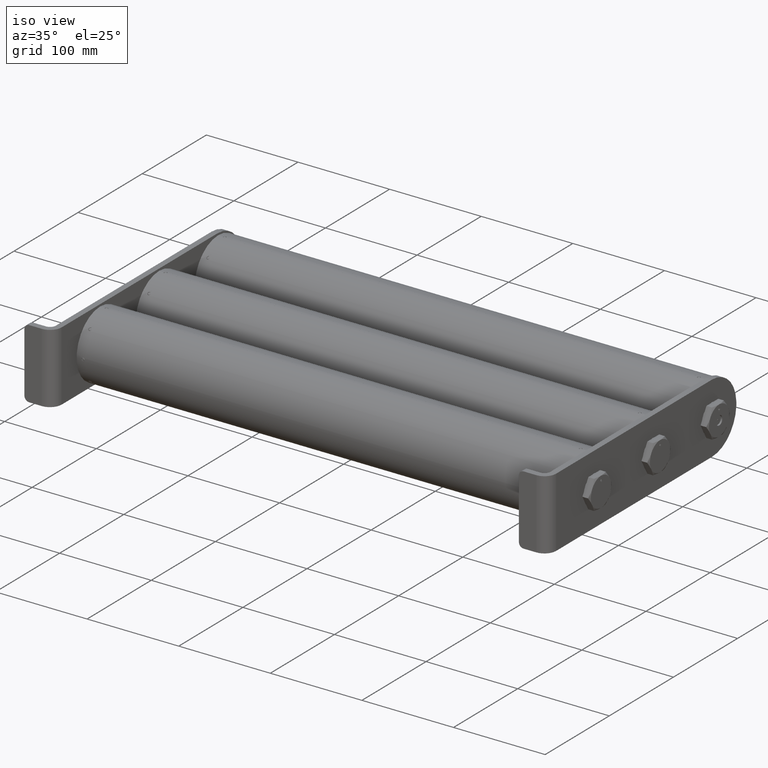
[diagram: clean part render]
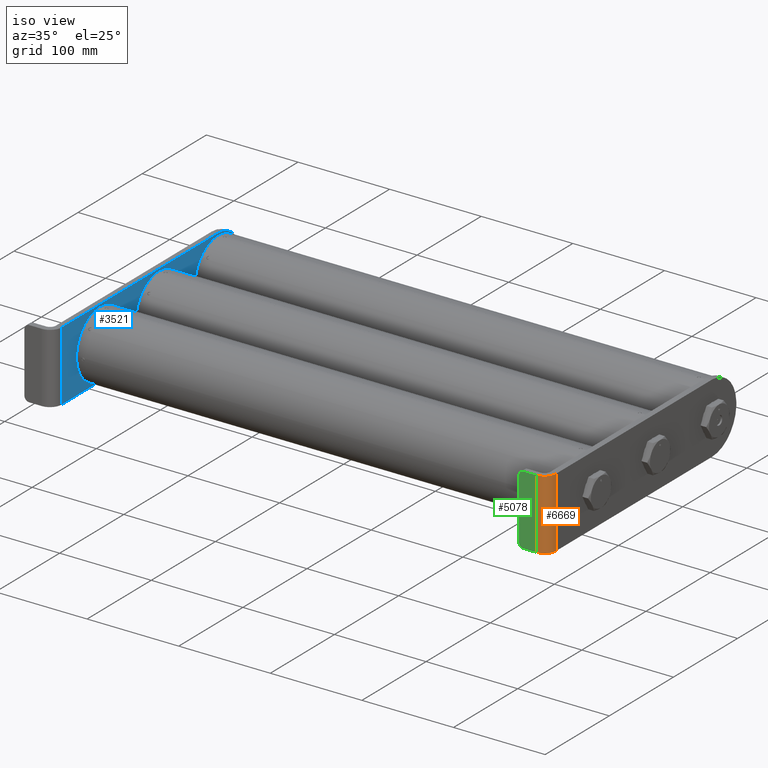
[diagram: same view with three faces highlighted in distinct colors, each labeled with its STEP entity id]
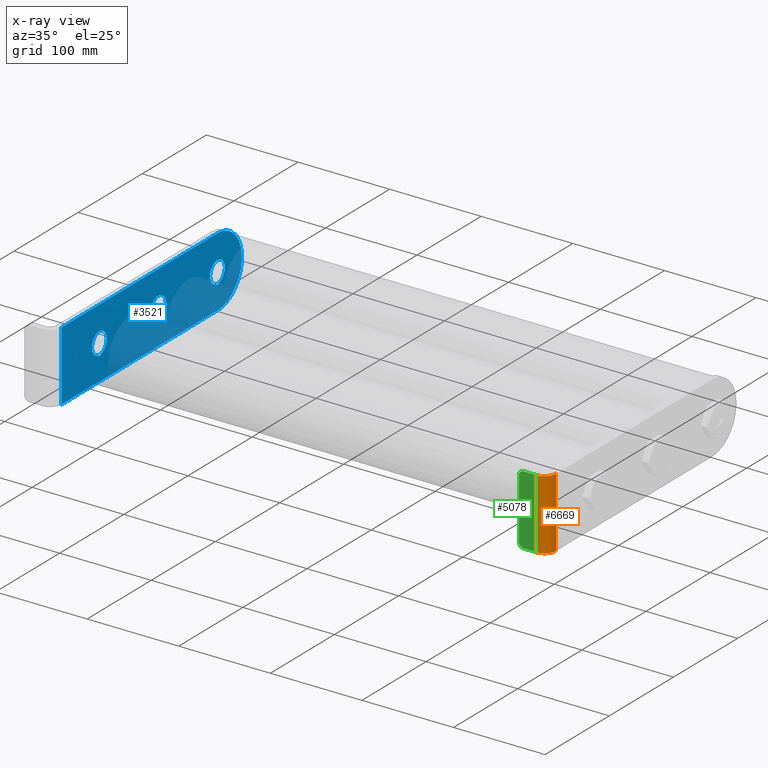
[diagram: x-ray of the same camera — body ghosted, the three highlighted faces saturated]
A machine part, iso view with three faces highlighted in distinct colors.
The next image is the same camera in x-ray (body ghosted, the three faces saturated) — at least one of them is partly hidden behind the body in this view.
Their STEP definitions:

[orange] entity #6669 — the highlighted cylindrical surface (edge-blend (fillet) strip) has radius 12.7 mm, axis along (0, 0, -1).
#107 = CYLINDRICAL_SURFACE ( 'NONE', #20725, 0.5000000000000006661 ) ;
#752 = CARTESIAN_POINT ( 'NONE',  ( -6.030000000000001137, 0.2499999999999993616, 1.500000000000000222 ) ) ;
#1073 = VECTOR ( 'NONE', #12927, 39.37007874015748143 ) ;
#1610 = CARTESIAN_POINT ( 'NONE',  ( -5.530000000000000249, 0.2499999999999993616, -1.500000000000000222 ) ) ;
#2713 = DIRECTION ( 'NONE',  ( -0.000000000000000000, -0.000000000000000000, -1.000000000000000000 ) ) ;
#3266 = VERTEX_POINT ( 'NONE', #3290 ) ;
#3290 = CARTESIAN_POINT ( 'NONE',  ( -5.530000000000000249, -0.2500000000000013323, 1.500000000000000222 ) ) ;
#3299 = DIRECTION ( 'NONE',  ( -1.000000000000000000, 0.000000000000000000, 0.000000000000000000 ) ) ;
#3683 = VERTEX_POINT ( 'NONE', #13980 ) ;
#4014 = CARTESIAN_POINT ( 'NONE',  ( -5.530000000000000249, 0.2499999999999993616, 1.500000000000000222 ) ) ;
#5088 = DIRECTION ( 'NONE',  ( -0.000000000000000000, -0.000000000000000000, -1.000000000000000000 ) ) ;
#5571 = EDGE_CURVE ( 'NONE', #20131, #3683, #7667, .T. ) ;
#5859 = LINE ( 'NONE', #12333, #6403 ) ;
#5960 = CIRCLE ( 'NONE', #13776, 0.5000000000000006661 ) ;
#5967 = EDGE_CURVE ( 'NONE', #9430, #20131, #11743, .T. ) ;
#6403 = VECTOR ( 'NONE', #2713, 39.37007874015748143 ) ;
#6439 = CARTESIAN_POINT ( 'NONE',  ( -6.030000000000001137, 0.2499999999999993616, 1.500000000000000222 ) ) ;
#6669 = ADVANCED_FACE ( 'NONE', ( #10239 ), #107, .T. ) ;
#7667 = CIRCLE ( 'NONE', #12744, 0.5000000000000006661 ) ;
#8250 = CARTESIAN_POINT ( 'NONE',  ( -5.530000000000000249, 0.2499999999999993616, 1.500000000000000222 ) ) ;
#9430 = VERTEX_POINT ( 'NONE', #752 ) ;
#9834 = DIRECTION ( 'NONE',  ( -1.000000000000000000, 0.000000000000000000, 0.000000000000000000 ) ) ;
#10239 = FACE_OUTER_BOUND ( 'NONE', #14266, .T. ) ;
#10357 = ORIENTED_EDGE ( 'NONE', *, *, #14975, .F. ) ;
#10439 = DIRECTION ( 'NONE',  ( 0.000000000000000000, 0.000000000000000000, 1.000000000000000000 ) ) ;
#10464 = ORIENTED_EDGE ( 'NONE', *, *, #5571, .T. ) ;
#11743 = LINE ( 'NONE', #6439, #1073 ) ;
#12333 = CARTESIAN_POINT ( 'NONE',  ( -5.530000000000000249, -0.2500000000000013323, 1.500000000000000222 ) ) ;
#12744 = AXIS2_PLACEMENT_3D ( 'NONE', #1610, #17641, #3299 ) ;
#12927 = DIRECTION ( 'NONE',  ( -0.000000000000000000, -0.000000000000000000, -1.000000000000000000 ) ) ;
#13549 = CARTESIAN_POINT ( 'NONE',  ( -6.030000000000001137, 0.2499999999999993616, -1.500000000000000222 ) ) ;
#13776 = AXIS2_PLACEMENT_3D ( 'NONE', #4014, #10439, #18361 ) ;
#13980 = CARTESIAN_POINT ( 'NONE',  ( -5.530000000000000249, -0.2500000000000013323, -1.500000000000000222 ) ) ;
#14266 = EDGE_LOOP ( 'NONE', ( #10464, #10357, #16253, #15462 ) ) ;
#14975 = EDGE_CURVE ( 'NONE', #3266, #3683, #5859, .T. ) ;
#15462 = ORIENTED_EDGE ( 'NONE', *, *, #5967, .T. ) ;
#16253 = ORIENTED_EDGE ( 'NONE', *, *, #17688, .F. ) ;
#17641 = DIRECTION ( 'NONE',  ( 0.000000000000000000, 0.000000000000000000, 1.000000000000000000 ) ) ;
#17688 = EDGE_CURVE ( 'NONE', #9430, #3266, #5960, .T. ) ;
#18361 = DIRECTION ( 'NONE',  ( -1.000000000000000000, 0.000000000000000000, 0.000000000000000000 ) ) ;
#20131 = VERTEX_POINT ( 'NONE', #13549 ) ;
#20725 = AXIS2_PLACEMENT_3D ( 'NONE', #8250, #5088, #9834 ) ;

[blue] entity #3521 — the highlighted planar face has unit normal (-1, -0, 0).
#145 = EDGE_CURVE ( 'NONE', #5104, #5358, #8671, .T. ) ;
#217 = CARTESIAN_POINT ( 'NONE',  ( 0.4080000000000322258, -0.2500000000000006106, -0.4380000000002428062 ) ) ;
#428 = EDGE_CURVE ( 'NONE', #8827, #12040, #13453, .T. ) ;
#451 = LINE ( 'NONE', #18288, #16926 ) ;
#463 = VERTEX_POINT ( 'NONE', #11851 ) ;
#490 = EDGE_LOOP ( 'NONE', ( #17114, #6637, #16041, #11797 ) ) ;
#653 = DIRECTION ( 'NONE',  ( -6.244565049226323508E-17, 1.000000000000000000, 0.000000000000000000 ) ) ;
#926 = CARTESIAN_POINT ( 'NONE',  ( -3.279340087111078716, -0.2500000000000009992, -0.4486899971461180137 ) ) ;
#1086 = CARTESIAN_POINT ( 'NONE',  ( 4.033000000000001251, -0.2500000000000014433, 0.000000000000000000 ) ) ;
#1115 = CARTESIAN_POINT ( 'NONE',  ( 4.486000000000000654, -0.2500000000000013878, 5.547650000137510070E-17 ) ) ;
#1313 = CIRCLE ( 'NONE', #11446, 0.06324999999999993128 ) ;
#1355 = EDGE_CURVE ( 'NONE', #463, #11784, #19611, .T. ) ;
#1413 = LINE ( 'NONE', #1506, #3235 ) ;
#1506 = CARTESIAN_POINT ( 'NONE',  ( 5.530000000000000249, -0.2500000000000000000, 1.500000000000000222 ) ) ;
#1644 = CARTESIAN_POINT ( 'NONE',  ( 4.095340087111150496, -0.2500000000000014433, -0.4486899971461076886 ) ) ;
#1662 = CIRCLE ( 'NONE', #1996, 0.4529999999999997917 ) ;
#1706 = CARTESIAN_POINT ( 'NONE',  ( 4.033000000000001251, -0.2500000000000014433, 0.000000000000000000 ) ) ;
#1716 = EDGE_CURVE ( 'NONE', #5358, #6421, #1662, .T. ) ;
#1754 = CARTESIAN_POINT ( 'NONE',  ( 0.4080000000000006954, -0.2500000000000016098, 0.000000000000000000 ) ) ;
#1766 = EDGE_CURVE ( 'NONE', #16287, #12601, #16499, .T. ) ;
#1996 = AXIS2_PLACEMENT_3D ( 'NONE', #3162, #3361, #3068 ) ;
#2000 = EDGE_LOOP ( 'NONE', ( #12042, #5800, #9163, #20291 ) ) ;
#2113 = CIRCLE ( 'NONE', #8178, 0.4530000000000003468 ) ;
#2241 = AXIS2_PLACEMENT_3D ( 'NONE', #1754, #8188, #11600 ) ;
#2705 = CARTESIAN_POINT ( 'NONE',  ( -3.669999999999999929, -0.2500000000000018874, 0.000000000000000000 ) ) ;
#2776 = AXIS2_PLACEMENT_3D ( 'NONE', #217, #16738, #3505 ) ;
#2805 = DIRECTION ( 'NONE',  ( -1.000000000000000000, 0.000000000000000000, 0.000000000000000000 ) ) ;
#3068 = DIRECTION ( 'NONE',  ( -1.000000000000000000, -7.538211903047087144E-17, 0.000000000000000000 ) ) ;
#3077 = DIRECTION ( 'NONE',  ( -1.000000000000000000, -1.204137338979501345E-16, 0.000000000000000000 ) ) ;
#3109 = CIRCLE ( 'NONE', #2776, 0.06324999999999993128 ) ;
#3162 = CARTESIAN_POINT ( 'NONE',  ( 4.033000000000001251, -0.2500000000000014433, 0.000000000000000000 ) ) ;
#3235 = VECTOR ( 'NONE', #8042, 39.37007874015748143 ) ;
#3361 = DIRECTION ( 'NONE',  ( -6.244565049226323508E-17, 1.000000000000000000, 0.000000000000000000 ) ) ;
#3505 = DIRECTION ( 'NONE',  ( -1.000000000000000000, 0.000000000000000000, 0.000000000000000000 ) ) ;
#3521 = ADVANCED_FACE ( 'NONE', ( #19319, #4757, #17717, #11107 ), #10788, .F. ) ;
#3601 = EDGE_CURVE ( 'NONE', #13589, #16770, #17049, .T. ) ;
#3952 = AXIS2_PLACEMENT_3D ( 'NONE', #19842, #14744, #5176 ) ;
#4205 = DIRECTION ( 'NONE',  ( -1.000000000000000000, -7.538211903047078516E-17, 0.000000000000000000 ) ) ;
#4596 = CARTESIAN_POINT ( 'NONE',  ( -0.04499999999999972772, -0.2500000000000016653, 0.000000000000000000 ) ) ;
#4757 = FACE_OUTER_BOUND ( 'NONE', #9872, .T. ) ;
#4782 = ORIENTED_EDGE ( 'NONE', *, *, #17067, .F. ) ;
#5010 = CARTESIAN_POINT ( 'NONE',  ( 4.033000000000001251, -0.2500000000000001665, -1.500000000000000222 ) ) ;
#5104 = VERTEX_POINT ( 'NONE', #5528 ) ;
#5176 = DIRECTION ( 'NONE',  ( -1.000000000000000000, -7.538211903047087144E-17, 0.000000000000000000 ) ) ;
#5295 = CIRCLE ( 'NONE', #8003, 1.499999999999999334 ) ;
#5358 = VERTEX_POINT ( 'NONE', #18399 ) ;
#5477 = AXIS2_PLACEMENT_3D ( 'NONE', #6028, #6435, #18902 ) ;
#5528 = CARTESIAN_POINT ( 'NONE',  ( 3.970659912888917287, -0.2500000000000001110, -0.4486899971461167924 ) ) ;
#5607 = EDGE_CURVE ( 'NONE', #6421, #17214, #13096, .T. ) ;
#5800 = ORIENTED_EDGE ( 'NONE', *, *, #17153, .T. ) ;
#5983 = DIRECTION ( 'NONE',  ( 1.000000000000000000, 1.204137338979501099E-16, -0.000000000000000000 ) ) ;
#6028 = CARTESIAN_POINT ( 'NONE',  ( 0.4080000000000006954, -0.2500000000000016098, 0.000000000000000000 ) ) ;
#6421 = VERTEX_POINT ( 'NONE', #1115 ) ;
#6435 = DIRECTION ( 'NONE',  ( -6.244565049226323508E-17, 1.000000000000000000, 0.000000000000000000 ) ) ;
#6494 = CARTESIAN_POINT ( 'NONE',  ( 5.530000000000000249, -0.2500000000000013323, -0.09482088377568229087 ) ) ;
#6523 = CARTESIAN_POINT ( 'NONE',  ( 0.4703400871111476644, -0.2500000000000016098, -0.4486899971461085768 ) ) ;
#6637 = ORIENTED_EDGE ( 'NONE', *, *, #1716, .T. ) ;
#6736 = VECTOR ( 'NONE', #8427, 39.37007874015748143 ) ;
#6750 = EDGE_CURVE ( 'NONE', #16770, #463, #3109, .T. ) ;
#6881 = CARTESIAN_POINT ( 'NONE',  ( 4.033000000000001251, -0.2500000000000014433, 0.000000000000000000 ) ) ;
#6887 = DIRECTION ( 'NONE',  ( -0.000000000000000000, -0.000000000000000000, -1.000000000000000000 ) ) ;
#6995 = CARTESIAN_POINT ( 'NONE',  ( 4.033000000000001251, -0.2500000000000014433, 1.499999999999999778 ) ) ;
#7043 = ORIENTED_EDGE ( 'NONE', *, *, #15238, .T. ) ;
#7171 = VERTEX_POINT ( 'NONE', #12687 ) ;
#7276 = CARTESIAN_POINT ( 'NONE',  ( 0.4080000000000006954, -0.2500000000000016098, 0.000000000000000000 ) ) ;
#7450 = ORIENTED_EDGE ( 'NONE', *, *, #19610, .T. ) ;
#7569 = EDGE_CURVE ( 'NONE', #19679, #12758, #2113, .T. ) ;
#7576 = AXIS2_PLACEMENT_3D ( 'NONE', #6881, #11877, #18282 ) ;
#7717 = AXIS2_PLACEMENT_3D ( 'NONE', #7276, #10325, #12174 ) ;
#7788 = ORIENTED_EDGE ( 'NONE', *, *, #1766, .T. ) ;
#8003 = AXIS2_PLACEMENT_3D ( 'NONE', #1706, #8349, #14843 ) ;
#8042 = DIRECTION ( 'NONE',  ( -0.000000000000000000, -0.000000000000000000, -1.000000000000000000 ) ) ;
#8178 = AXIS2_PLACEMENT_3D ( 'NONE', #10412, #15014, #16599 ) ;
#8188 = DIRECTION ( 'NONE',  ( -6.244565049226323508E-17, 1.000000000000000000, 0.000000000000000000 ) ) ;
#8216 = EDGE_CURVE ( 'NONE', #12601, #12651, #17075, .T. ) ;
#8263 = AXIS2_PLACEMENT_3D ( 'NONE', #19788, #18104, #18008 ) ;
#8349 = DIRECTION ( 'NONE',  ( 6.244565049226323508E-17, -1.000000000000000000, 0.000000000000000000 ) ) ;
#8427 = DIRECTION ( 'NONE',  ( 1.000000000000000000, 1.204137338979501099E-16, -0.000000000000000000 ) ) ;
#8671 = CIRCLE ( 'NONE', #16154, 0.4529999999999997917 ) ;
#8703 = EDGE_CURVE ( 'NONE', #12758, #8827, #12345, .T. ) ;
#8801 = ORIENTED_EDGE ( 'NONE', *, *, #8216, .T. ) ;
#8827 = VERTEX_POINT ( 'NONE', #10188 ) ;
#9163 = ORIENTED_EDGE ( 'NONE', *, *, #3601, .T. ) ;
#9273 = ORIENTED_EDGE ( 'NONE', *, *, #428, .T. ) ;
#9465 = CARTESIAN_POINT ( 'NONE',  ( 0.8610000000000009868, -0.2500000000000016098, 5.547650000137516850E-17 ) ) ;
#9659 = DIRECTION ( 'NONE',  ( -1.000000000000000000, 0.000000000000000000, 0.000000000000000000 ) ) ;
#9872 = EDGE_LOOP ( 'NONE', ( #7788, #8801, #20055, #7450, #4782, #7043 ) ) ;
#10090 = CARTESIAN_POINT ( 'NONE',  ( -3.216999999999968107, -0.2500000000000010547, -0.4380000000002303717 ) ) ;
#10188 = CARTESIAN_POINT ( 'NONE',  ( -2.763999999999999346, -0.2500000000000018319, 5.547650000137516850E-17 ) ) ;
#10325 = DIRECTION ( 'NONE',  ( -6.244565049226323508E-17, 1.000000000000000000, 0.000000000000000000 ) ) ;
#10412 = CARTESIAN_POINT ( 'NONE',  ( -3.216999999999999638, -0.2500000000000018874, 0.000000000000000000 ) ) ;
#10788 = PLANE ( 'NONE',  #14338 ) ;
#10905 = EDGE_CURVE ( 'NONE', #7171, #12651, #1413, .T. ) ;
#11000 = CARTESIAN_POINT ( 'NONE',  ( -3.154659912888854834, -0.2500000000000018874, -0.4486899971461089653 ) ) ;
#11009 = VECTOR ( 'NONE', #5983, 39.37007874015748143 ) ;
#11107 = FACE_BOUND ( 'NONE', #490, .T. ) ;
#11446 = AXIS2_PLACEMENT_3D ( 'NONE', #19347, #18932, #2805 ) ;
#11600 = DIRECTION ( 'NONE',  ( -1.000000000000000000, -7.538211903047077283E-17, 0.000000000000000000 ) ) ;
#11784 = VERTEX_POINT ( 'NONE', #4596 ) ;
#11797 = ORIENTED_EDGE ( 'NONE', *, *, #20492, .T. ) ;
#11851 = CARTESIAN_POINT ( 'NONE',  ( 0.3456599128889192296, -0.2500000000000005551, -0.4486899971461177361 ) ) ;
#11877 = DIRECTION ( 'NONE',  ( 6.244565049226323508E-17, -1.000000000000000000, 0.000000000000000000 ) ) ;
#12040 = VERTEX_POINT ( 'NONE', #11000 ) ;
#12042 = ORIENTED_EDGE ( 'NONE', *, *, #1355, .T. ) ;
#12174 = DIRECTION ( 'NONE',  ( -1.000000000000000000, -7.538211903047077283E-17, 0.000000000000000000 ) ) ;
#12345 = CIRCLE ( 'NONE', #8263, 0.4530000000000003468 ) ;
#12601 = VERTEX_POINT ( 'NONE', #5010 ) ;
#12651 = VERTEX_POINT ( 'NONE', #6494 ) ;
#12687 = CARTESIAN_POINT ( 'NONE',  ( 5.530000000000000249, -0.2500000000000013323, 0.09482088377568229087 ) ) ;
#12758 = VERTEX_POINT ( 'NONE', #2705 ) ;
#12898 = DIRECTION ( 'NONE',  ( -1.204137338979501345E-16, 1.000000000000000000, 0.000000000000000000 ) ) ;
#13096 = CIRCLE ( 'NONE', #3952, 0.4529999999999997917 ) ;
#13118 = ORIENTED_EDGE ( 'NONE', *, *, #18835, .T. ) ;
#13453 = CIRCLE ( 'NONE', #16490, 0.4530000000000003468 ) ;
#13589 = VERTEX_POINT ( 'NONE', #9465 ) ;
#13660 = CARTESIAN_POINT ( 'NONE',  ( -3.216999999999999638, -0.2500000000000018874, 0.000000000000000000 ) ) ;
#13777 = VERTEX_POINT ( 'NONE', #15427 ) ;
#13932 = CARTESIAN_POINT ( 'NONE',  ( -5.530000000000000249, -0.2500000000000013323, -1.500000000000000222 ) ) ;
#14129 = CIRCLE ( 'NONE', #14780, 0.06324999999999993128 ) ;
#14338 = AXIS2_PLACEMENT_3D ( 'NONE', #15693, #12898, #3077 ) ;
#14744 = DIRECTION ( 'NONE',  ( -6.244565049226323508E-17, 1.000000000000000000, 0.000000000000000000 ) ) ;
#14780 = AXIS2_PLACEMENT_3D ( 'NONE', #10090, #18209, #9659 ) ;
#14843 = DIRECTION ( 'NONE',  ( 1.000000000000000000, 6.829619984160660511E-17, 0.000000000000000000 ) ) ;
#15014 = DIRECTION ( 'NONE',  ( -6.244565049226323508E-17, 1.000000000000000000, 0.000000000000000000 ) ) ;
#15238 = EDGE_CURVE ( 'NONE', #13777, #16287, #451, .T. ) ;
#15427 = CARTESIAN_POINT ( 'NONE',  ( -5.530000000000000249, -0.2500000000000013323, 1.500000000000000222 ) ) ;
#15657 = LINE ( 'NONE', #20537, #11009 ) ;
#15693 = CARTESIAN_POINT ( 'NONE',  ( 5.530000000000000249, -0.2500000000000000000, 1.500000000000000222 ) ) ;
#16041 = ORIENTED_EDGE ( 'NONE', *, *, #5607, .T. ) ;
#16150 = VERTEX_POINT ( 'NONE', #6995 ) ;
#16154 = AXIS2_PLACEMENT_3D ( 'NONE', #1086, #653, #16854 ) ;
#16287 = VERTEX_POINT ( 'NONE', #13932 ) ;
#16390 = CARTESIAN_POINT ( 'NONE',  ( 5.530000000000000249, -0.2500000000000000000, -1.500000000000000222 ) ) ;
#16490 = AXIS2_PLACEMENT_3D ( 'NONE', #13660, #18666, #4205 ) ;
#16499 = LINE ( 'NONE', #16390, #6736 ) ;
#16599 = DIRECTION ( 'NONE',  ( -1.000000000000000000, -7.538211903047078516E-17, 0.000000000000000000 ) ) ;
#16738 = DIRECTION ( 'NONE',  ( -1.204137338979501345E-16, 1.000000000000000000, 0.000000000000000000 ) ) ;
#16770 = VERTEX_POINT ( 'NONE', #6523 ) ;
#16854 = DIRECTION ( 'NONE',  ( -1.000000000000000000, -7.538211903047087144E-17, 0.000000000000000000 ) ) ;
#16918 = ORIENTED_EDGE ( 'NONE', *, *, #7569, .T. ) ;
#16926 = VECTOR ( 'NONE', #6887, 39.37007874015748143 ) ;
#17049 = CIRCLE ( 'NONE', #5477, 0.4530000000000004023 ) ;
#17067 = EDGE_CURVE ( 'NONE', #13777, #16150, #15657, .T. ) ;
#17075 = CIRCLE ( 'NONE', #7576, 1.499999999999999334 ) ;
#17114 = ORIENTED_EDGE ( 'NONE', *, *, #145, .T. ) ;
#17153 = EDGE_CURVE ( 'NONE', #11784, #13589, #17503, .T. ) ;
#17214 = VERTEX_POINT ( 'NONE', #1644 ) ;
#17503 = CIRCLE ( 'NONE', #2241, 0.4530000000000004023 ) ;
#17717 = FACE_BOUND ( 'NONE', #20758, .T. ) ;
#18008 = DIRECTION ( 'NONE',  ( -1.000000000000000000, -7.538211903047078516E-17, 0.000000000000000000 ) ) ;
#18104 = DIRECTION ( 'NONE',  ( -6.244565049226323508E-17, 1.000000000000000000, 0.000000000000000000 ) ) ;
#18209 = DIRECTION ( 'NONE',  ( -1.204137338979501345E-16, 1.000000000000000000, 0.000000000000000000 ) ) ;
#18282 = DIRECTION ( 'NONE',  ( 1.000000000000000000, 6.829619984160660511E-17, 0.000000000000000000 ) ) ;
#18288 = CARTESIAN_POINT ( 'NONE',  ( -5.530000000000000249, -0.2500000000000013323, 1.500000000000000222 ) ) ;
#18399 = CARTESIAN_POINT ( 'NONE',  ( 3.580000000000000959, -0.2500000000000014433, 0.000000000000000000 ) ) ;
#18666 = DIRECTION ( 'NONE',  ( -6.244565049226323508E-17, 1.000000000000000000, 0.000000000000000000 ) ) ;
#18835 = EDGE_CURVE ( 'NONE', #12040, #19679, #14129, .T. ) ;
#18902 = DIRECTION ( 'NONE',  ( -1.000000000000000000, -7.538211903047077283E-17, 0.000000000000000000 ) ) ;
#18932 = DIRECTION ( 'NONE',  ( -1.204137338979501345E-16, 1.000000000000000000, 0.000000000000000000 ) ) ;
#19319 = FACE_BOUND ( 'NONE', #2000, .T. ) ;
#19347 = CARTESIAN_POINT ( 'NONE',  ( 4.033000000000033225, -0.2500000000000001665, -0.4380000000002555183 ) ) ;
#19610 = EDGE_CURVE ( 'NONE', #7171, #16150, #5295, .T. ) ;
#19611 = CIRCLE ( 'NONE', #7717, 0.4530000000000004023 ) ;
#19679 = VERTEX_POINT ( 'NONE', #926 ) ;
#19788 = CARTESIAN_POINT ( 'NONE',  ( -3.216999999999999638, -0.2500000000000018874, 0.000000000000000000 ) ) ;
#19842 = CARTESIAN_POINT ( 'NONE',  ( 4.033000000000001251, -0.2500000000000014433, 0.000000000000000000 ) ) ;
#20055 = ORIENTED_EDGE ( 'NONE', *, *, #10905, .F. ) ;
#20291 = ORIENTED_EDGE ( 'NONE', *, *, #6750, .T. ) ;
#20492 = EDGE_CURVE ( 'NONE', #17214, #5104, #1313, .T. ) ;
#20537 = CARTESIAN_POINT ( 'NONE',  ( 5.530000000000000249, -0.2500000000000000000, 1.500000000000000222 ) ) ;
#20580 = ORIENTED_EDGE ( 'NONE', *, *, #8703, .T. ) ;
#20758 = EDGE_LOOP ( 'NONE', ( #16918, #20580, #9273, #13118 ) ) ;

[green] entity #5078 — the highlighted planar face has unit normal (-0, 1, 0).
#752 = CARTESIAN_POINT ( 'NONE',  ( -6.030000000000001137, 0.2499999999999993616, 1.500000000000000222 ) ) ;
#785 = ORIENTED_EDGE ( 'NONE', *, *, #5162, .F. ) ;
#861 = LINE ( 'NONE', #13905, #20905 ) ;
#1073 = VECTOR ( 'NONE', #12927, 39.37007874015748143 ) ;
#2006 = CIRCLE ( 'NONE', #13866, 0.2000000000000000389 ) ;
#2084 = PLANE ( 'NONE',  #14097 ) ;
#2725 = CARTESIAN_POINT ( 'NONE',  ( -6.030000000000000249, 0.9999999999999994449, 1.500000000000000222 ) ) ;
#3687 = DIRECTION ( 'NONE',  ( 0.000000000000000000, 0.000000000000000000, -1.000000000000000000 ) ) ;
#4057 = ORIENTED_EDGE ( 'NONE', *, *, #17041, .T. ) ;
#5078 = ADVANCED_FACE ( 'NONE', ( #5126 ), #2084, .F. ) ;
#5126 = FACE_OUTER_BOUND ( 'NONE', #11940, .T. ) ;
#5162 = EDGE_CURVE ( 'NONE', #20718, #18626, #11004, .T. ) ;
#5829 = CARTESIAN_POINT ( 'NONE',  ( -6.030000000000000249, 0.9999999999999994449, 1.299999999999998712 ) ) ;
#5882 = EDGE_CURVE ( 'NONE', #20718, #20131, #19013, .T. ) ;
#5967 = EDGE_CURVE ( 'NONE', #9430, #20131, #11743, .T. ) ;
#6439 = CARTESIAN_POINT ( 'NONE',  ( -6.030000000000001137, 0.2499999999999993616, 1.500000000000000222 ) ) ;
#8630 = VECTOR ( 'NONE', #9159, 39.37007874015748143 ) ;
#9040 = CARTESIAN_POINT ( 'NONE',  ( -6.030000000000000249, 0.7999999999999993783, -1.300000000000000044 ) ) ;
#9159 = DIRECTION ( 'NONE',  ( -0.000000000000000000, -0.000000000000000000, -1.000000000000000000 ) ) ;
#9204 = VERTEX_POINT ( 'NONE', #5829 ) ;
#9291 = CARTESIAN_POINT ( 'NONE',  ( -6.030000000000000249, 0.2499999999999994171, -1.500000000000000222 ) ) ;
#9430 = VERTEX_POINT ( 'NONE', #752 ) ;
#10619 = VERTEX_POINT ( 'NONE', #11488 ) ;
#10735 = DIRECTION ( 'NONE',  ( 1.000000000000000000, -0.000000000000000000, -0.000000000000000000 ) ) ;
#10850 = DIRECTION ( 'NONE',  ( 0.000000000000000000, 0.000000000000000000, 1.000000000000000000 ) ) ;
#10997 = DIRECTION ( 'NONE',  ( -0.000000000000000000, -1.000000000000000000, -0.000000000000000000 ) ) ;
#11004 = CIRCLE ( 'NONE', #11363, 0.2000000000000000389 ) ;
#11363 = AXIS2_PLACEMENT_3D ( 'NONE', #9040, #10735, #10850 ) ;
#11488 = CARTESIAN_POINT ( 'NONE',  ( -6.030000000000000249, 0.7999999999999977129, 1.500000000000000222 ) ) ;
#11743 = LINE ( 'NONE', #6439, #1073 ) ;
#11940 = EDGE_LOOP ( 'NONE', ( #4057, #785, #16484, #16497, #20780, #14980 ) ) ;
#11949 = EDGE_CURVE ( 'NONE', #10619, #9430, #861, .T. ) ;
#12293 = DIRECTION ( 'NONE',  ( -0.000000000000000000, -1.000000000000000000, -0.000000000000000000 ) ) ;
#12453 = LINE ( 'NONE', #2725, #8630 ) ;
#12927 = DIRECTION ( 'NONE',  ( -0.000000000000000000, -0.000000000000000000, -1.000000000000000000 ) ) ;
#13411 = DIRECTION ( 'NONE',  ( 1.000000000000000000, 0.000000000000000000, 0.000000000000000000 ) ) ;
#13549 = CARTESIAN_POINT ( 'NONE',  ( -6.030000000000001137, 0.2499999999999993616, -1.500000000000000222 ) ) ;
#13866 = AXIS2_PLACEMENT_3D ( 'NONE', #20009, #15131, #3687 ) ;
#13905 = CARTESIAN_POINT ( 'NONE',  ( -6.030000000000000249, 0.2499999999999994171, 1.500000000000000222 ) ) ;
#14097 = AXIS2_PLACEMENT_3D ( 'NONE', #16584, #13411, #19793 ) ;
#14335 = EDGE_CURVE ( 'NONE', #9204, #10619, #2006, .T. ) ;
#14980 = ORIENTED_EDGE ( 'NONE', *, *, #14335, .F. ) ;
#15131 = DIRECTION ( 'NONE',  ( 1.000000000000000000, -0.000000000000000000, -0.000000000000000000 ) ) ;
#15611 = CARTESIAN_POINT ( 'NONE',  ( -6.030000000000000249, 0.9999999999999994449, -1.299999999999998712 ) ) ;
#16484 = ORIENTED_EDGE ( 'NONE', *, *, #5882, .T. ) ;
#16497 = ORIENTED_EDGE ( 'NONE', *, *, #5967, .F. ) ;
#16584 = CARTESIAN_POINT ( 'NONE',  ( -6.030000000000000249, 0.2499999999999994171, 1.500000000000000222 ) ) ;
#16606 = VECTOR ( 'NONE', #10997, 39.37007874015748143 ) ;
#16639 = CARTESIAN_POINT ( 'NONE',  ( -6.030000000000000249, 0.7999999999999980460, -1.500000000000000222 ) ) ;
#17041 = EDGE_CURVE ( 'NONE', #9204, #18626, #12453, .T. ) ;
#18626 = VERTEX_POINT ( 'NONE', #15611 ) ;
#19013 = LINE ( 'NONE', #9291, #16606 ) ;
#19793 = DIRECTION ( 'NONE',  ( 0.000000000000000000, 0.000000000000000000, -1.000000000000000000 ) ) ;
#20009 = CARTESIAN_POINT ( 'NONE',  ( -6.030000000000000249, 0.7999999999999993783, 1.300000000000000044 ) ) ;
#20131 = VERTEX_POINT ( 'NONE', #13549 ) ;
#20718 = VERTEX_POINT ( 'NONE', #16639 ) ;
#20780 = ORIENTED_EDGE ( 'NONE', *, *, #11949, .F. ) ;
#20905 = VECTOR ( 'NONE', #12293, 39.37007874015748143 ) ;